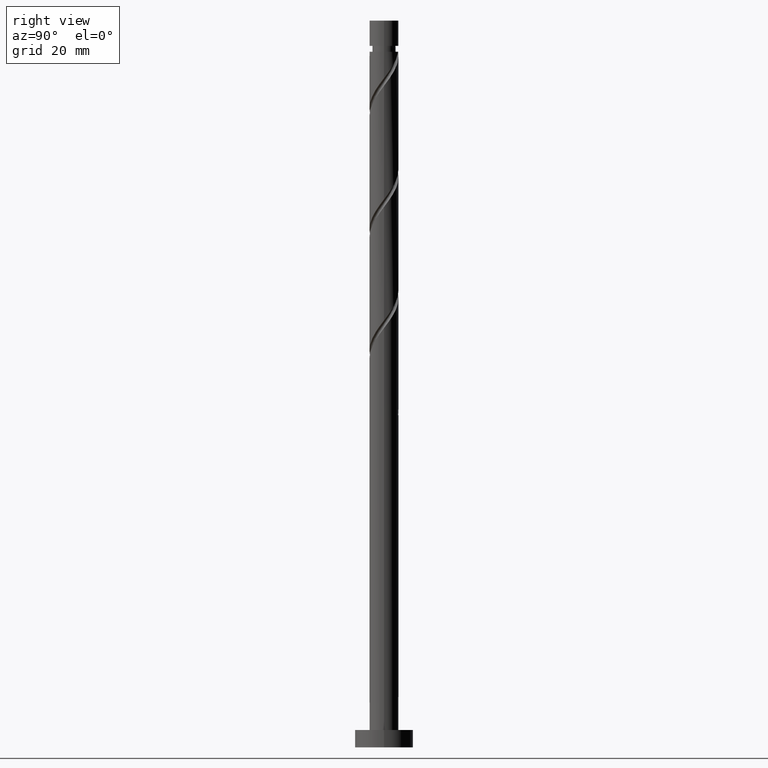
[diagram: clean part render]
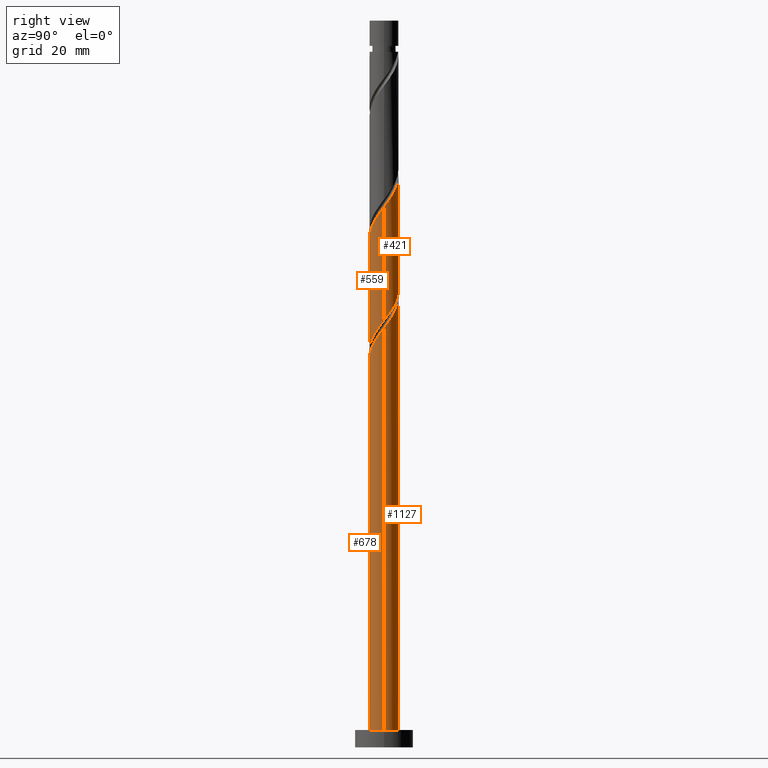
[diagram: same view with one multi-face feature highlighted, each face labeled with its STEP entity id]
A machine part, right view. The highlighted faces form ONE feature: a constant-radius fillet chain: 4 tangent blend faces with common blend radius 2.5 mm. The faces share edges in the B-rep.
Their STEP definitions:
[1] entity #1127 (Cylinder):
#16 = DIRECTION ( 'NONE',  ( -1.000000000000000000, 0.000000000000000000, 0.000000000000000000 ) ) ;
#21 = VERTEX_POINT ( 'NONE', #1138 ) ;
#31 = CARTESIAN_POINT ( 'NONE',  ( -1.842554741020977049, 1.689672165344846322, 59.23285542210386012 ) ) ;
#60 = CARTESIAN_POINT ( 'NONE',  ( 1.037592995212146540, 2.274511107092402007, 75.89952208877051021 ) ) ;
#64 =( BOUNDED_CURVE ( )  B_SPLINE_CURVE ( 2, ( #1148, #917, #289, #663, #1285, #179, #558, #204, #410, #551, #420, #1398, #1035 ),
 .UNSPECIFIED., .F., .T. ) 
 B_SPLINE_CURVE_WITH_KNOTS ( ( 3, 2, 2, 2, 2, 2, 3 ),
 ( 0.9295322023138551382, 0.9375000000000000000, 0.9499999999999999556, 0.9625000000000000222, 0.9749999999999999778, 0.9875000000000000444, 1.000000000000000000 ),
 .UNSPECIFIED. ) 
 CURVE ( )  GEOMETRIC_REPRESENTATION_ITEM ( )  RATIONAL_B_SPLINE_CURVE ( ( 0.9039174447099354026, 0.9019565955404647006, 0.9090909090909131685, 0.8978984914501292325, 0.9090909090909131685, 0.8978984914501292325, 0.9090909090909131685, 0.8978984914501292325, 0.9090909090909131685, 0.8978984914501292325, 0.9090909090909131685, 0.8978984914501292325, 0.9090909090909131685 ) ) 
 REPRESENTATION_ITEM ( '' )  );
#75 = ORIENTED_EDGE ( 'NONE', *, *, #259, .T. ) ;
#77 = CARTESIAN_POINT ( 'NONE',  ( 1.981504166768774056, 1.574936960780885853, 74.33702208877048179 ) ) ;
#100 = ORIENTED_EDGE ( 'NONE', *, *, #592, .F. ) ;
#104 = CARTESIAN_POINT ( 'NONE',  ( -2.500000000000000000, 0.000000000000000000, 125.0000000000000000 ) ) ;
#110 = CARTESIAN_POINT ( 'NONE',  ( -2.483822478550889556, 0.2839469933725886630, 82.14952208877051021 ) ) ;
#155 = CARTESIAN_POINT ( 'NONE',  ( -2.274511107092402451, 1.037592995212145874, 60.27452208877052442 ) ) ;
#179 = CARTESIAN_POINT ( 'NONE',  ( -1.981504166768770503, 1.574936960780884077, 60.79535542210386723 ) ) ;
#204 = CARTESIAN_POINT ( 'NONE',  ( -1.397840163920914813, 2.110172521261064915, 59.75368875543718161 ) ) ;
#259 = EDGE_CURVE ( 'NONE', #1341, #865, #1524, .T. ) ;
#283 = CARTESIAN_POINT ( 'NONE',  ( 2.450000000000003730, 0.4974937185533107042, 72.77452208877053863 ) ) ;
#289 = CARTESIAN_POINT ( 'NONE',  ( -2.449999999999999734, 0.4974937185533108153, 62.35785542210385302 ) ) ;
#291 = VECTOR ( 'NONE', #606, 1000.000000000000000 ) ;
#335 = VERTEX_POINT ( 'NONE', #1370 ) ;
#346 = EDGE_CURVE ( 'NONE', #21, #1275, #1065, .T. ) ;
#379 = CARTESIAN_POINT ( 'NONE',  ( 0.000000000000000000, 0.000000000000000000, 3.000000000000000000 ) ) ;
#381 = CARTESIAN_POINT ( 'NONE',  ( -2.500000000000003109, -2.968634351074724659E-15, 61.69305298063360254 ) ) ;
#384 = VERTEX_POINT ( 'NONE', #633 ) ;
#391 = CARTESIAN_POINT ( 'NONE',  ( 1.397840163920917256, 2.110172521261066247, 75.37868875543718161 ) ) ;
#398 = CARTESIAN_POINT ( 'NONE',  ( -1.230236279064656157, 2.176354451295370307, 79.02452208877052442 ) ) ;
#410 = CARTESIAN_POINT ( 'NONE',  ( -1.037592995212143432, 2.274511107092399342, 59.23285542210385302 ) ) ;
#412 = CIRCLE ( 'NONE', #1508, 2.500000000000000000 ) ;
#420 = CARTESIAN_POINT ( 'NONE',  ( -0.2839469933725877748, 2.483822478550885116, 58.19118875543718872 ) ) ;
#436 = LINE ( 'NONE', #924, #694 ) ;
#507 = CARTESIAN_POINT ( 'NONE',  ( -1.574936960780886075, 1.981504166768772945, 58.71202208877052442 ) ) ;
#509 =( BOUNDED_CURVE ( )  B_SPLINE_CURVE ( 2, ( #888, #1136, #283, #517, #795, #77, #1492, #391, #60, #565, #1000, #1483, #881, #1364, #398, #1371, #701, #1068, #1187, #1086, #110, #1414, #1201 ),
 .UNSPECIFIED., .F., .T. ) 
 B_SPLINE_CURVE_WITH_KNOTS ( ( 3, 2, 2, 2, 2, 2, 2, 2, 2, 2, 2, 3 ),
 ( 0.1795322023138553325, 0.1875000000000000000, 0.1999999999999999556, 0.2125000000000000222, 0.2249999999999999778, 0.2375000000000000444, 0.2500000000000000000, 0.2624999999999999556, 0.2750000000000000222, 0.2874999999999999778, 0.3000000000000000444, 0.3045322023138554157 ),
 .UNSPECIFIED. ) 
 CURVE ( )  GEOMETRIC_REPRESENTATION_ITEM ( )  RATIONAL_B_SPLINE_CURVE ( ( 0.9039174447099425080, 0.9019565955404720281, 0.9090909090909202739, 0.8978984914501365600, 0.9090909090909202739, 0.8978984914501365600, 0.9090909090909202739, 0.8978984914501365600, 0.9090909090909202739, 0.8978984914501365600, 0.9090909090909202739, 0.8978984914501365600, 0.9090909090909202739, 0.8978984914501365600, 0.9090909090909202739, 0.8978984914501365600, 0.9090909090909202739, 0.8978984914501365600, 0.9090909090909202739, 0.8978984914501365600, 0.9090909090909202739, 0.9050328050005845837, 0.9039174447099425080 ) ) 
 REPRESENTATION_ITEM ( '' )  );
#515 = EDGE_CURVE ( 'NONE', #1257, #874, #64, .T. ) ;
#517 = CARTESIAN_POINT ( 'NONE',  ( 2.371204735821965226, 0.8855355973484249077, 73.29535542210383881 ) ) ;
#551 = CARTESIAN_POINT ( 'NONE',  ( -0.6773458265033720505, 2.438849692923733770, 58.71202208877053152 ) ) ;
#558 = CARTESIAN_POINT ( 'NONE',  ( -1.689672165344842769, 1.842554741020974385, 60.27452208877053863 ) ) ;
#565 = CARTESIAN_POINT ( 'NONE',  ( 0.6773458265033741599, 2.438849692923737766, 76.42035542210385302 ) ) ;
#592 = EDGE_CURVE ( 'NONE', #1275, #335, #436, .T. ) ;
#599 = LINE ( 'NONE', #104, #291 ) ;
#606 = DIRECTION ( 'NONE',  ( -0.000000000000000000, -0.000000000000000000, -1.000000000000000000 ) ) ;
#607 = CARTESIAN_POINT ( 'NONE',  ( 0.4974937185533113704, 2.450000000000000178, 57.14952208877052442 ) ) ;
#633 = CARTESIAN_POINT ( 'NONE',  ( -2.500000000000003553, -2.968634351074724659E-15, 82.52638631396690982 ) ) ;
#638 = DIRECTION ( 'NONE',  ( 0.000000000000000000, 1.000000000000000000, -5.551115123125782702E-15 ) ) ;
#663 = CARTESIAN_POINT ( 'NONE',  ( -2.371204735821961229, 0.8855355973484247967, 61.83702208877052442 ) ) ;
#694 = VECTOR ( 'NONE', #1499, 1000.000000000000000 ) ;
#701 = CARTESIAN_POINT ( 'NONE',  ( -1.842554741020977049, 1.689672165344846322, 80.06618875543722424 ) ) ;
#727 = ORIENTED_EDGE ( 'NONE', *, *, #346, .F. ) ;
#737 = DIRECTION ( 'NONE',  ( -0.000000000000000000, -0.000000000000000000, -1.000000000000000000 ) ) ;
#739 = CARTESIAN_POINT ( 'NONE',  ( -2.483822478550889556, 0.2839469933725886630, 61.31618875543719582 ) ) ;
#754 = CARTESIAN_POINT ( 'NONE',  ( 0.000000000000000000, 0.000000000000000000, 57.14952208877053863 ) ) ;
#781 = EDGE_LOOP ( 'NONE', ( #1207, #75, #857, #100, #727, #1117, #1271, #968 ) ) ;
#795 = CARTESIAN_POINT ( 'NONE',  ( 2.176354451295370751, 1.230236279064655491, 73.81618875543721003 ) ) ;
#801 = CARTESIAN_POINT ( 'NONE',  ( 2.500000000000000000, 3.061616997868382648E-16, 125.0000000000000000 ) ) ;
#857 = ORIENTED_EDGE ( 'NONE', *, *, #1273, .T. ) ;
#865 = VERTEX_POINT ( 'NONE', #1344 ) ;
#874 = VERTEX_POINT ( 'NONE', #607 ) ;
#876 = CARTESIAN_POINT ( 'NONE',  ( -2.500000000000000000, -3.388441229004510459E-15, 63.02265786357415323 ) ) ;
#881 = CARTESIAN_POINT ( 'NONE',  ( -0.4974937185533104822, 2.450000000000003730, 77.98285542210388144 ) ) ;
#888 = CARTESIAN_POINT ( 'NONE',  ( 2.500000000000003553, 2.608799884277788504E-15, 72.10971964730025263 ) ) ;
#902 = AXIS2_PLACEMENT_3D ( 'NONE', #1574, #737, #16 ) ;
#917 = CARTESIAN_POINT ( 'NONE',  ( -2.500000000000000444, 0.2512594538148018031, 62.68835328816629726 ) ) ;
#919 = DIRECTION ( 'NONE',  ( -0.000000000000000000, -0.000000000000000000, -1.000000000000000000 ) ) ;
#924 = CARTESIAN_POINT ( 'NONE',  ( -2.500000000000000000, 0.000000000000000000, 125.0000000000000000 ) ) ;
#957 = EDGE_CURVE ( 'NONE', #1341, #384, #509, .T. ) ;
#968 = ORIENTED_EDGE ( 'NONE', *, *, #991, .F. ) ;
#991 = EDGE_CURVE ( 'NONE', #384, #1257, #599, .T. ) ;
#992 = CARTESIAN_POINT ( 'NONE',  ( -0.4974937185533103157, 2.450000000000003286, 57.14952208877051731 ) ) ;
#999 = CARTESIAN_POINT ( 'NONE',  ( -2.438849692923737766, 0.6773458265033737158, 60.79535542210384591 ) ) ;
#1000 = CARTESIAN_POINT ( 'NONE',  ( 0.2839469933725892736, 2.483822478550890001, 76.94118875543721003 ) ) ;
#1004 = DIRECTION ( 'NONE',  ( -1.540743955509787281E-30, -6.938893903907225222E-15, -1.000000000000000000 ) ) ;
#1005 = CARTESIAN_POINT ( 'NONE',  ( -1.230236279064656157, 2.176354451295370307, 58.19118875543719582 ) ) ;
#1035 = CARTESIAN_POINT ( 'NONE',  ( 0.4974937185533113704, 2.450000000000000178, 57.14952208877052442 ) ) ;
#1065 =( BOUNDED_CURVE ( )  B_SPLINE_CURVE ( 2, ( #992, #1219, #1005, #507, #31, #1338, #155, #999, #739, #1238, #381 ),
 .UNSPECIFIED., .F., .T. ) 
 B_SPLINE_CURVE_WITH_KNOTS ( ( 3, 2, 2, 2, 2, 3 ),
 ( 0.000000000000000000, 0.01249999999999995559, 0.02500000000000002220, 0.03749999999999997780, 0.05000000000000004441, 0.05453220231385547817 ),
 .UNSPECIFIED. ) 
 CURVE ( )  GEOMETRIC_REPRESENTATION_ITEM ( )  RATIONAL_B_SPLINE_CURVE ( ( 0.9090909090909202739, 0.8978984914501365600, 0.9090909090909202739, 0.8978984914501365600, 0.9090909090909202739, 0.8978984914501365600, 0.9090909090909202739, 0.8978984914501365600, 0.9090909090909202739, 0.9050328050005846947, 0.9039174447099427301 ) ) 
 REPRESENTATION_ITEM ( '' )  );
#1068 = CARTESIAN_POINT ( 'NONE',  ( -2.110172521261066692, 1.397840163920916812, 80.58702208877048179 ) ) ;
#1086 = CARTESIAN_POINT ( 'NONE',  ( -2.438849692923737766, 0.6773458265033737158, 81.62868875543719582 ) ) ;
#1093 = CARTESIAN_POINT ( 'NONE',  ( -2.500000000000003553, -2.968634351074724659E-15, 61.69305298063360254 ) ) ;
#1100 = DIRECTION ( 'NONE',  ( 1.000000000000000000, 0.000000000000000000, 0.000000000000000000 ) ) ;
#1106 = CIRCLE ( 'NONE', #1560, 2.500000000000000000 ) ;
#1111 = FACE_OUTER_BOUND ( 'NONE', #781, .T. ) ;
#1117 = ORIENTED_EDGE ( 'NONE', *, *, #1270, .T. ) ;
#1127 = ADVANCED_FACE ( 'NONE', ( #1111 ), #1489, .T. ) ;
#1136 = CARTESIAN_POINT ( 'NONE',  ( 2.500000000000002665, 0.2512594538148071877, 72.44402422270812281 ) ) ;
#1138 = CARTESIAN_POINT ( 'NONE',  ( -0.4974937185533103712, 2.450000000000003286, 57.14952208877052442 ) ) ;
#1148 = CARTESIAN_POINT ( 'NONE',  ( -2.500000000000000000, -3.388441229004510459E-15, 63.02265786357414612 ) ) ;
#1187 = CARTESIAN_POINT ( 'NONE',  ( -2.274511107092402451, 1.037592995212145874, 81.10785542210386723 ) ) ;
#1201 = CARTESIAN_POINT ( 'NONE',  ( -2.500000000000003553, -2.968634351074724659E-15, 82.52638631396690982 ) ) ;
#1207 = ORIENTED_EDGE ( 'NONE', *, *, #957, .F. ) ;
#1219 = CARTESIAN_POINT ( 'NONE',  ( -0.8855355973484252408, 2.371204735821965226, 57.67035542210383881 ) ) ;
#1238 = CARTESIAN_POINT ( 'NONE',  ( -2.500000000000003553, 0.1424343436160735998, 61.50354189142633032 ) ) ;
#1243 = DIRECTION ( 'NONE',  ( 0.000000000000000000, 0.000000000000000000, 1.000000000000000000 ) ) ;
#1257 = VERTEX_POINT ( 'NONE', #876 ) ;
#1270 = EDGE_CURVE ( 'NONE', #21, #874, #1106, .T. ) ;
#1271 = ORIENTED_EDGE ( 'NONE', *, *, #515, .F. ) ;
#1273 = EDGE_CURVE ( 'NONE', #865, #335, #412, .T. ) ;
#1275 = VERTEX_POINT ( 'NONE', #1093 ) ;
#1285 = CARTESIAN_POINT ( 'NONE',  ( -2.176354451295365866, 1.230236279064654381, 61.31618875543717451 ) ) ;
#1338 = CARTESIAN_POINT ( 'NONE',  ( -2.110172521261066692, 1.397840163920916812, 59.75368875543716740 ) ) ;
#1341 = VERTEX_POINT ( 'NONE', #1361 ) ;
#1344 = CARTESIAN_POINT ( 'NONE',  ( 2.500000000000000000, 3.061616997868382648E-16, 3.000000000000000000 ) ) ;
#1361 = CARTESIAN_POINT ( 'NONE',  ( 2.500000000000003553, 2.608799884277788110E-15, 72.10971964730025263 ) ) ;
#1364 = CARTESIAN_POINT ( 'NONE',  ( -0.8855355973484252408, 2.371204735821965226, 78.50368875543716740 ) ) ;
#1370 = CARTESIAN_POINT ( 'NONE',  ( -2.500000000000000000, 0.000000000000000000, 3.000000000000000000 ) ) ;
#1371 = CARTESIAN_POINT ( 'NONE',  ( -1.574936960780886075, 1.981504166768772945, 79.54535542210386723 ) ) ;
#1398 = CARTESIAN_POINT ( 'NONE',  ( 0.1094518397581969033, 2.528795264178037794, 57.67035542210384591 ) ) ;
#1414 = CARTESIAN_POINT ( 'NONE',  ( -2.500000000000004441, 0.1424343436160755705, 82.33687522475963760 ) ) ;
#1483 = CARTESIAN_POINT ( 'NONE',  ( -0.1094518397581958763, 2.528795264178040902, 77.46202208877051021 ) ) ;
#1489 = CYLINDRICAL_SURFACE ( 'NONE', #902, 2.500000000000000000 ) ;
#1492 = CARTESIAN_POINT ( 'NONE',  ( 1.689672165344846544, 1.842554741020976827, 74.85785542210385302 ) ) ;
#1499 = DIRECTION ( 'NONE',  ( -0.000000000000000000, -0.000000000000000000, -1.000000000000000000 ) ) ;
#1508 = AXIS2_PLACEMENT_3D ( 'NONE', #379, #1243, #1100 ) ;
#1524 = LINE ( 'NONE', #801, #1534 ) ;
#1534 = VECTOR ( 'NONE', #919, 1000.000000000000000 ) ;
#1560 = AXIS2_PLACEMENT_3D ( 'NONE', #754, #1004, #638 ) ;
#1574 = CARTESIAN_POINT ( 'NONE',  ( 0.000000000000000000, 0.000000000000000000, 125.0000000000000000 ) ) ;
[2] entity #678 (Cylinder):
#44 = EDGE_LOOP ( 'NONE', ( #345, #961, #1324, #784 ) ) ;
#89 =( BOUNDED_CURVE ( )  B_SPLINE_CURVE ( 2, ( #1069, #1429, #814, #578, #455, #1437, #343, #693, #356, #1423, #220, #1309, #98, #835, #715, #585, #964, #830, #1196, #1076, #1445, #473, #1559 ),
 .UNSPECIFIED., .F., .T. ) 
 B_SPLINE_CURVE_WITH_KNOTS ( ( 3, 2, 2, 2, 2, 2, 2, 2, 2, 2, 2, 3 ),
 ( 0.05453220231385547817, 0.06250000000000000000, 0.07499999999999995559, 0.08750000000000002220, 0.09999999999999997780, 0.1125000000000000444, 0.1250000000000000000, 0.1374999999999999556, 0.1500000000000000222, 0.1624999999999999778, 0.1750000000000000444, 0.1795322023138553325 ),
 .UNSPECIFIED. ) 
 CURVE ( )  GEOMETRIC_REPRESENTATION_ITEM ( )  RATIONAL_B_SPLINE_CURVE ( ( 0.9039174447099427301, 0.9019565955404722501, 0.9090909090909202739, 0.8978984914501365600, 0.9090909090909202739, 0.8978984914501365600, 0.9090909090909202739, 0.8978984914501365600, 0.9090909090909202739, 0.8978984914501365600, 0.9090909090909202739, 0.8978984914501365600, 0.9090909090909202739, 0.8978984914501365600, 0.9090909090909202739, 0.8978984914501365600, 0.9090909090909202739, 0.8978984914501365600, 0.9090909090909202739, 0.8978984914501365600, 0.9090909090909202739, 0.9050328050005845837, 0.9039174447099425080 ) ) 
 REPRESENTATION_ITEM ( '' )  );
#90 = DIRECTION ( 'NONE',  ( -0.000000000000000000, -0.000000000000000000, -1.000000000000000000 ) ) ;
#98 = CARTESIAN_POINT ( 'NONE',  ( 0.4974937185533108153, -2.450000000000003730, 67.56618875543719582 ) ) ;
#194 = CARTESIAN_POINT ( 'NONE',  ( 0.000000000000000000, 0.000000000000000000, 3.000000000000000000 ) ) ;
#211 = FACE_OUTER_BOUND ( 'NONE', #44, .T. ) ;
#220 = CARTESIAN_POINT ( 'NONE',  ( -0.2839469933725888851, -2.483822478550889556, 66.52452208877052442 ) ) ;
#259 = EDGE_CURVE ( 'NONE', #1341, #865, #1524, .T. ) ;
#335 = VERTEX_POINT ( 'NONE', #1370 ) ;
#343 = CARTESIAN_POINT ( 'NONE',  ( -1.689672165344846322, -1.842554741020976827, 64.44118875543719582 ) ) ;
#345 = ORIENTED_EDGE ( 'NONE', *, *, #259, .F. ) ;
#356 = CARTESIAN_POINT ( 'NONE',  ( -1.037592995212146318, -2.274511107092402007, 65.48285542210386723 ) ) ;
#436 = LINE ( 'NONE', #924, #694 ) ;
#455 = CARTESIAN_POINT ( 'NONE',  ( -2.176354451295370751, -1.230236279064656157, 63.39952208877054574 ) ) ;
#473 = CARTESIAN_POINT ( 'NONE',  ( 2.500000000000004441, -0.1424343436160785403, 71.92020855809299462 ) ) ;
#524 = CIRCLE ( 'NONE', #596, 2.500000000000000000 ) ;
#578 = CARTESIAN_POINT ( 'NONE',  ( -2.371204735821965226, -0.8855355973484251297, 62.87868875543716030 ) ) ;
#585 = CARTESIAN_POINT ( 'NONE',  ( 1.574936960780885853, -1.981504166768773612, 69.12868875543719582 ) ) ;
#592 = EDGE_CURVE ( 'NONE', #1275, #335, #436, .T. ) ;
#596 = AXIS2_PLACEMENT_3D ( 'NONE', #194, #1289, #1161 ) ;
#678 = ADVANCED_FACE ( 'NONE', ( #211 ), #1181, .T. ) ;
#693 = CARTESIAN_POINT ( 'NONE',  ( -1.397840163920916812, -2.110172521261066692, 64.96202208877051021 ) ) ;
#694 = VECTOR ( 'NONE', #1499, 1000.000000000000000 ) ;
#715 = CARTESIAN_POINT ( 'NONE',  ( 1.230236279064655713, -2.176354451295370751, 68.60785542210386723 ) ) ;
#772 = EDGE_CURVE ( 'NONE', #1275, #1341, #89, .T. ) ;
#784 = ORIENTED_EDGE ( 'NONE', *, *, #1522, .T. ) ;
#801 = CARTESIAN_POINT ( 'NONE',  ( 2.500000000000000000, 3.061616997868382648E-16, 125.0000000000000000 ) ) ;
#814 = CARTESIAN_POINT ( 'NONE',  ( -2.450000000000003730, -0.4974937185533110373, 62.35785542210387433 ) ) ;
#830 = CARTESIAN_POINT ( 'NONE',  ( 2.110172521261066692, -1.397840163920917256, 70.17035542210385302 ) ) ;
#835 = CARTESIAN_POINT ( 'NONE',  ( 0.8855355973484250187, -2.371204735821965226, 68.08702208877049600 ) ) ;
#865 = VERTEX_POINT ( 'NONE', #1344 ) ;
#919 = DIRECTION ( 'NONE',  ( -0.000000000000000000, -0.000000000000000000, -1.000000000000000000 ) ) ;
#924 = CARTESIAN_POINT ( 'NONE',  ( -2.500000000000000000, 0.000000000000000000, 125.0000000000000000 ) ) ;
#961 = ORIENTED_EDGE ( 'NONE', *, *, #772, .F. ) ;
#964 = CARTESIAN_POINT ( 'NONE',  ( 1.842554741020976827, -1.689672165344846322, 69.64952208877055284 ) ) ;
#1061 = DIRECTION ( 'NONE',  ( -1.000000000000000000, 0.000000000000000000, 0.000000000000000000 ) ) ;
#1069 = CARTESIAN_POINT ( 'NONE',  ( -2.500000000000003109, -2.968634351074724659E-15, 61.69305298063360254 ) ) ;
#1076 = CARTESIAN_POINT ( 'NONE',  ( 2.438849692923737766, -0.6773458265033740489, 71.21202208877051021 ) ) ;
#1087 = CARTESIAN_POINT ( 'NONE',  ( 0.000000000000000000, 0.000000000000000000, 125.0000000000000000 ) ) ;
#1093 = CARTESIAN_POINT ( 'NONE',  ( -2.500000000000003553, -2.968634351074724659E-15, 61.69305298063360254 ) ) ;
#1161 = DIRECTION ( 'NONE',  ( 1.000000000000000000, 0.000000000000000000, 0.000000000000000000 ) ) ;
#1181 = CYLINDRICAL_SURFACE ( 'NONE', #1356, 2.500000000000000000 ) ;
#1196 = CARTESIAN_POINT ( 'NONE',  ( 2.274511107092402007, -1.037592995212146318, 70.69118875543719582 ) ) ;
#1275 = VERTEX_POINT ( 'NONE', #1093 ) ;
#1289 = DIRECTION ( 'NONE',  ( 0.000000000000000000, 0.000000000000000000, 1.000000000000000000 ) ) ;
#1309 = CARTESIAN_POINT ( 'NONE',  ( 0.1094518397581961539, -2.528795264178040902, 67.04535542210383881 ) ) ;
#1324 = ORIENTED_EDGE ( 'NONE', *, *, #592, .T. ) ;
#1341 = VERTEX_POINT ( 'NONE', #1361 ) ;
#1344 = CARTESIAN_POINT ( 'NONE',  ( 2.500000000000000000, 3.061616997868382648E-16, 3.000000000000000000 ) ) ;
#1356 = AXIS2_PLACEMENT_3D ( 'NONE', #1087, #90, #1061 ) ;
#1361 = CARTESIAN_POINT ( 'NONE',  ( 2.500000000000003553, 2.608799884277788110E-15, 72.10971964730025263 ) ) ;
#1370 = CARTESIAN_POINT ( 'NONE',  ( -2.500000000000000000, 0.000000000000000000, 3.000000000000000000 ) ) ;
#1423 = CARTESIAN_POINT ( 'NONE',  ( -0.6773458265033740489, -2.438849692923737766, 66.00368875543716740 ) ) ;
#1429 = CARTESIAN_POINT ( 'NONE',  ( -2.500000000000001332, -0.2512594538148121281, 62.02735755604144430 ) ) ;
#1437 = CARTESIAN_POINT ( 'NONE',  ( -1.981504166768772945, -1.574936960780886075, 63.92035542210383170 ) ) ;
#1445 = CARTESIAN_POINT ( 'NONE',  ( 2.483822478550889556, -0.2839469933725889961, 71.73285542210385302 ) ) ;
#1499 = DIRECTION ( 'NONE',  ( -0.000000000000000000, -0.000000000000000000, -1.000000000000000000 ) ) ;
#1522 = EDGE_CURVE ( 'NONE', #335, #865, #524, .T. ) ;
#1524 = LINE ( 'NONE', #801, #1534 ) ;
#1534 = VECTOR ( 'NONE', #919, 1000.000000000000000 ) ;
#1559 = CARTESIAN_POINT ( 'NONE',  ( 2.500000000000003553, 2.608799884277788504E-15, 72.10971964730025263 ) ) ;
[3] entity #559 (Cylinder):
#8 = AXIS2_PLACEMENT_3D ( 'NONE', #1043, #78, #1529 ) ;
#37 = CARTESIAN_POINT ( 'NONE',  ( -2.176354451295370751, -1.230236279064656157, 84.23285542210388144 ) ) ;
#41 = EDGE_CURVE ( 'NONE', #118, #1380, #540, .T. ) ;
#45 = CARTESIAN_POINT ( 'NONE',  ( 2.274511107092402007, -1.037592995212146318, 91.52452208877053863 ) ) ;
#51 = CARTESIAN_POINT ( 'NONE',  ( 2.483822478550889556, -0.2839469933725889961, 92.56618875543719582 ) ) ;
#56 = ORIENTED_EDGE ( 'NONE', *, *, #991, .T. ) ;
#67 = CARTESIAN_POINT ( 'NONE',  ( 0.1094518397581961539, -2.528795264178040902, 87.87868875543716740 ) ) ;
#70 = FACE_OUTER_BOUND ( 'NONE', #1062, .T. ) ;
#78 = DIRECTION ( 'NONE',  ( -0.000000000000000000, -0.000000000000000000, -1.000000000000000000 ) ) ;
#104 = CARTESIAN_POINT ( 'NONE',  ( -2.500000000000000000, 0.000000000000000000, 125.0000000000000000 ) ) ;
#118 = VERTEX_POINT ( 'NONE', #1287 ) ;
#120 = CARTESIAN_POINT ( 'NONE',  ( 2.371204735821960785, -0.8855355973484250187, 72.25368875543718161 ) ) ;
#160 = CARTESIAN_POINT ( 'NONE',  ( -2.500000000000000000, -3.388441229004510459E-15, 63.02265786357414612 ) ) ;
#177 = CARTESIAN_POINT ( 'NONE',  ( 1.574936960780885853, -1.981504166768773612, 89.96202208877051021 ) ) ;
#210 = CARTESIAN_POINT ( 'NONE',  ( 0.6773458265033719394, -2.438849692923733326, 69.12868875543721003 ) ) ;
#219 = CARTESIAN_POINT ( 'NONE',  ( 2.176354451295365866, -1.230236279064654603, 71.73285542210385302 ) ) ;
#238 = CARTESIAN_POINT ( 'NONE',  ( 2.500000000000000000, 2.998620556641159737E-15, 73.43932453024082463 ) ) ;
#247 = CARTESIAN_POINT ( 'NONE',  ( -2.438849692923733770, -0.6773458265033720505, 63.92035542210387433 ) ) ;
#263 = CARTESIAN_POINT ( 'NONE',  ( 2.500000000000000000, 2.998620556641159737E-15, 73.43932453024082463 ) ) ;
#287 = CARTESIAN_POINT ( 'NONE',  ( 2.110172521261066692, -1.397840163920917256, 91.00368875543715319 ) ) ;
#291 = VECTOR ( 'NONE', #606, 1000.000000000000000 ) ;
#294 = ORIENTED_EDGE ( 'NONE', *, *, #41, .F. ) ;
#296 = CARTESIAN_POINT ( 'NONE',  ( 0.8855355973484250187, -2.371204735821965226, 88.92035542210381038 ) ) ;
#333 = CARTESIAN_POINT ( 'NONE',  ( -1.574936960780884077, -1.981504166768770503, 66.00368875543721003 ) ) ;
#384 = VERTEX_POINT ( 'NONE', #633 ) ;
#386 = CARTESIAN_POINT ( 'NONE',  ( -2.274511107092399342, -1.037592995212143210, 64.44118875543719582 ) ) ;
#402 = CARTESIAN_POINT ( 'NONE',  ( -0.6773458265033740489, -2.438849692923737766, 86.83702208877051021 ) ) ;
#453 = CARTESIAN_POINT ( 'NONE',  ( 1.981504166768770503, -1.574936960780884077, 71.21202208877055284 ) ) ;
#464 =( BOUNDED_CURVE ( )  B_SPLINE_CURVE ( 2, ( #238, #577, #1209, #120, #219, #453, #1536, #931, #1301, #210, #692, #1180, #1059, #938, #1422, #333, #819, #513, #386, #247, #630, #1464, #160 ),
 .UNSPECIFIED., .F., .T. ) 
 B_SPLINE_CURVE_WITH_KNOTS ( ( 3, 2, 2, 2, 2, 2, 2, 2, 2, 2, 2, 3 ),
 ( 0.8045322023138551382, 0.8125000000000000000, 0.8249999999999999556, 0.8375000000000000222, 0.8499999999999999778, 0.8625000000000000444, 0.8750000000000000000, 0.8874999999999999556, 0.9000000000000000222, 0.9124999999999999778, 0.9250000000000000444, 0.9295322023138551382 ),
 .UNSPECIFIED. ) 
 CURVE ( )  GEOMETRIC_REPRESENTATION_ITEM ( )  RATIONAL_B_SPLINE_CURVE ( ( 0.9039174447099354026, 0.9019565955404647006, 0.9090909090909131685, 0.8978984914501292325, 0.9090909090909131685, 0.8978984914501292325, 0.9090909090909131685, 0.8978984914501292325, 0.9090909090909131685, 0.8978984914501292325, 0.9090909090909131685, 0.8978984914501292325, 0.9090909090909131685, 0.8978984914501292325, 0.9090909090909131685, 0.8978984914501292325, 0.9090909090909131685, 0.8978984914501292325, 0.9090909090909131685, 0.8978984914501292325, 0.9090909090909131685, 0.9050328050005775893, 0.9039174447099354026 ) ) 
 REPRESENTATION_ITEM ( '' )  );
#513 = CARTESIAN_POINT ( 'NONE',  ( -2.110172521261064915, -1.397840163920914369, 64.96202208877053863 ) ) ;
#540 = LINE ( 'NONE', #1030, #1404 ) ;
#548 = CARTESIAN_POINT ( 'NONE',  ( -2.500000000000003553, -2.968634351074724659E-15, 82.52638631396690982 ) ) ;
#559 = ADVANCED_FACE ( 'NONE', ( #70 ), #1514, .T. ) ;
#575 = ORIENTED_EDGE ( 'NONE', *, *, #1077, .F. ) ;
#577 = CARTESIAN_POINT ( 'NONE',  ( 2.500000000000000444, -0.2512594538148021917, 73.10501995483295445 ) ) ;
#599 = LINE ( 'NONE', #104, #291 ) ;
#606 = DIRECTION ( 'NONE',  ( -0.000000000000000000, -0.000000000000000000, -1.000000000000000000 ) ) ;
#630 = CARTESIAN_POINT ( 'NONE',  ( -2.483822478550885560, -0.2839469933725876638, 63.39952208877053152 ) ) ;
#633 = CARTESIAN_POINT ( 'NONE',  ( -2.500000000000003553, -2.968634351074724659E-15, 82.52638631396690982 ) ) ;
#661 = CARTESIAN_POINT ( 'NONE',  ( 2.500000000000004441, -0.1424343436160758758, 92.75354189142630901 ) ) ;
#692 = CARTESIAN_POINT ( 'NONE',  ( 0.2839469933725874418, -2.483822478550885560, 68.60785542210388144 ) ) ;
#752 = ORIENTED_EDGE ( 'NONE', *, *, #1552, .F. ) ;
#768 = CARTESIAN_POINT ( 'NONE',  ( -2.500000000000001776, -0.2512594538148100742, 82.86069088937472316 ) ) ;
#777 = CARTESIAN_POINT ( 'NONE',  ( -0.2839469933725888851, -2.483822478550889556, 87.35785542210386723 ) ) ;
#819 = CARTESIAN_POINT ( 'NONE',  ( -1.842554741020974385, -1.689672165344842103, 65.48285542210385302 ) ) ;
#876 = CARTESIAN_POINT ( 'NONE',  ( -2.500000000000000000, -3.388441229004510459E-15, 63.02265786357415323 ) ) ;
#892 = CARTESIAN_POINT ( 'NONE',  ( 0.4974937185533108153, -2.450000000000003730, 88.39952208877052442 ) ) ;
#899 = CARTESIAN_POINT ( 'NONE',  ( 2.500000000000003553, 2.608799884277788504E-15, 92.94305298063359544 ) ) ;
#907 = CARTESIAN_POINT ( 'NONE',  ( 2.438849692923737766, -0.6773458265033740489, 92.04535542210382459 ) ) ;
#914 = CARTESIAN_POINT ( 'NONE',  ( -1.689672165344846322, -1.842554741020976827, 85.27452208877052442 ) ) ;
#931 = CARTESIAN_POINT ( 'NONE',  ( 1.397840163920914369, -2.110172521261064915, 70.17035542210388144 ) ) ;
#938 = CARTESIAN_POINT ( 'NONE',  ( -0.8855355973484247967, -2.371204735821960785, 67.04535542210386723 ) ) ;
#991 = EDGE_CURVE ( 'NONE', #384, #1257, #599, .T. ) ;
#1011 = CARTESIAN_POINT ( 'NONE',  ( -1.397840163920916812, -2.110172521261066692, 85.79535542210382459 ) ) ;
#1013 =( BOUNDED_CURVE ( )  B_SPLINE_CURVE ( 2, ( #548, #768, #1526, #1133, #37, #1274, #914, #1011, #1497, #402, #777, #67, #892, #296, #1403, #177, #1375, #287, #45, #907, #51, #661, #899 ),
 .UNSPECIFIED., .F., .T. ) 
 B_SPLINE_CURVE_WITH_KNOTS ( ( 3, 2, 2, 2, 2, 2, 2, 2, 2, 2, 2, 3 ),
 ( 0.3045322023138554157, 0.3125000000000000000, 0.3249999999999999556, 0.3375000000000000222, 0.3499999999999999778, 0.3625000000000000444, 0.3750000000000000000, 0.3874999999999999556, 0.4000000000000000222, 0.4124999999999999778, 0.4250000000000000444, 0.4295322023138554157 ),
 .UNSPECIFIED. ) 
 CURVE ( )  GEOMETRIC_REPRESENTATION_ITEM ( )  RATIONAL_B_SPLINE_CURVE ( ( 0.9039174447099425080, 0.9019565955404722501, 0.9090909090909202739, 0.8978984914501365600, 0.9090909090909202739, 0.8978984914501365600, 0.9090909090909202739, 0.8978984914501365600, 0.9090909090909202739, 0.8978984914501365600, 0.9090909090909202739, 0.8978984914501365600, 0.9090909090909202739, 0.8978984914501365600, 0.9090909090909202739, 0.8978984914501365600, 0.9090909090909202739, 0.8978984914501365600, 0.9090909090909202739, 0.8978984914501365600, 0.9090909090909202739, 0.9050328050005845837, 0.9039174447099425080 ) ) 
 REPRESENTATION_ITEM ( '' )  );
#1030 = CARTESIAN_POINT ( 'NONE',  ( 2.500000000000000000, 3.061616997868382648E-16, 125.0000000000000000 ) ) ;
#1043 = CARTESIAN_POINT ( 'NONE',  ( 0.000000000000000000, 0.000000000000000000, 125.0000000000000000 ) ) ;
#1059 = CARTESIAN_POINT ( 'NONE',  ( -0.4974937185533110373, -2.449999999999999734, 67.56618875543718161 ) ) ;
#1062 = EDGE_LOOP ( 'NONE', ( #294, #752, #56, #575 ) ) ;
#1077 = EDGE_CURVE ( 'NONE', #1380, #1257, #464, .T. ) ;
#1133 = CARTESIAN_POINT ( 'NONE',  ( -2.371204735821965226, -0.8855355973484251297, 83.71202208877052442 ) ) ;
#1180 = CARTESIAN_POINT ( 'NONE',  ( -0.1094518397581972224, -2.528795264178037794, 68.08702208877053863 ) ) ;
#1209 = CARTESIAN_POINT ( 'NONE',  ( 2.449999999999999734, -0.4974937185533112038, 72.77452208877051021 ) ) ;
#1257 = VERTEX_POINT ( 'NONE', #876 ) ;
#1274 = CARTESIAN_POINT ( 'NONE',  ( -1.981504166768772945, -1.574936960780886075, 84.75368875543715319 ) ) ;
#1287 = CARTESIAN_POINT ( 'NONE',  ( 2.500000000000003553, 2.608799884277788110E-15, 92.94305298063359544 ) ) ;
#1301 = CARTESIAN_POINT ( 'NONE',  ( 1.037592995212143210, -2.274511107092399342, 69.64952208877051021 ) ) ;
#1375 = CARTESIAN_POINT ( 'NONE',  ( 1.842554741020976827, -1.689672165344846322, 90.48285542210385302 ) ) ;
#1380 = VERTEX_POINT ( 'NONE', #263 ) ;
#1403 = CARTESIAN_POINT ( 'NONE',  ( 1.230236279064655713, -2.176354451295370751, 89.44118875543721003 ) ) ;
#1404 = VECTOR ( 'NONE', #1516, 1000.000000000000000 ) ;
#1422 = CARTESIAN_POINT ( 'NONE',  ( -1.230236279064654381, -2.176354451295365866, 66.52452208877052442 ) ) ;
#1464 = CARTESIAN_POINT ( 'NONE',  ( -2.500000000000000000, -0.1424343436160834531, 63.21216895278143966 ) ) ;
#1497 = CARTESIAN_POINT ( 'NONE',  ( -1.037592995212146318, -2.274511107092402007, 86.31618875543721003 ) ) ;
#1514 = CYLINDRICAL_SURFACE ( 'NONE', #8, 2.500000000000000000 ) ;
#1516 = DIRECTION ( 'NONE',  ( -0.000000000000000000, -0.000000000000000000, -1.000000000000000000 ) ) ;
#1526 = CARTESIAN_POINT ( 'NONE',  ( -2.450000000000003730, -0.4974937185533110373, 83.19118875543716740 ) ) ;
#1529 = DIRECTION ( 'NONE',  ( -1.000000000000000000, 0.000000000000000000, 0.000000000000000000 ) ) ;
#1536 = CARTESIAN_POINT ( 'NONE',  ( 1.689672165344842103, -1.842554741020974385, 70.69118875543722424 ) ) ;
#1552 = EDGE_CURVE ( 'NONE', #384, #118, #1013, .T. ) ;
[4] entity #421 (Cylinder):
#39 = CYLINDRICAL_SURFACE ( 'NONE', #190, 2.500000000000000000 ) ;
#41 = EDGE_CURVE ( 'NONE', #118, #1380, #540, .T. ) ;
#47 = CARTESIAN_POINT ( 'NONE',  ( 0.2839469933725892736, 2.483822478550890001, 97.77452208877049600 ) ) ;
#87 = CARTESIAN_POINT ( 'NONE',  ( 1.230236279064654825, 2.176354451295365422, 76.94118875543723846 ) ) ;
#93 = EDGE_CURVE ( 'NONE', #467, #1178, #1487, .T. ) ;
#97 = CARTESIAN_POINT ( 'NONE',  ( -1.689672165344842769, 1.842554741020974385, 81.10785542210383881 ) ) ;
#105 = CARTESIAN_POINT ( 'NONE',  ( -2.500000000000003109, -1.709213717285447328E-15, 103.3597196473002668 ) ) ;
#118 = VERTEX_POINT ( 'NONE', #1287 ) ;
#125 = ORIENTED_EDGE ( 'NONE', *, *, #610, .F. ) ;
#173 = CARTESIAN_POINT ( 'NONE',  ( 1.689672165344846544, 1.842554741020976827, 95.69118875543721003 ) ) ;
#190 = AXIS2_PLACEMENT_3D ( 'NONE', #397, #274, #1246 ) ;
#226 = CARTESIAN_POINT ( 'NONE',  ( 0.4974937185533113704, 2.449999999999999734, 77.98285542210385302 ) ) ;
#263 = CARTESIAN_POINT ( 'NONE',  ( 2.500000000000000000, 2.998620556641159737E-15, 73.43932453024082463 ) ) ;
#265 = VECTOR ( 'NONE', #1249, 1000.000000000000000 ) ;
#274 = DIRECTION ( 'NONE',  ( -0.000000000000000000, -0.000000000000000000, -1.000000000000000000 ) ) ;
#298 = CARTESIAN_POINT ( 'NONE',  ( -1.574936960780886075, 1.981504166768772945, 100.3786887554371674 ) ) ;
#342 = CARTESIAN_POINT ( 'NONE',  ( 2.483822478550885560, 0.2839469933725872197, 73.81618875543722424 ) ) ;
#355 = CARTESIAN_POINT ( 'NONE',  ( -1.037592995212143432, 2.274511107092399342, 80.06618875543719582 ) ) ;
#397 = CARTESIAN_POINT ( 'NONE',  ( 0.000000000000000000, 0.000000000000000000, 125.0000000000000000 ) ) ;
#421 = ADVANCED_FACE ( 'NONE', ( #861 ), #39, .T. ) ;
#445 = CARTESIAN_POINT ( 'NONE',  ( -0.6773458265033720505, 2.438849692923733770, 79.54535542210386723 ) ) ;
#459 = CARTESIAN_POINT ( 'NONE',  ( 0.1094518397581969033, 2.528795264178037794, 78.50368875543719582 ) ) ;
#460 = CARTESIAN_POINT ( 'NONE',  ( -2.483822478550889556, 0.2839469933725886630, 102.9828554221038956 ) ) ;
#467 = VERTEX_POINT ( 'NONE', #668 ) ;
#472 = CARTESIAN_POINT ( 'NONE',  ( 1.842554741020974607, 1.689672165344842103, 75.89952208877053863 ) ) ;
#481 = CARTESIAN_POINT ( 'NONE',  ( -2.176354451295365866, 1.230236279064654381, 82.14952208877053863 ) ) ;
#538 = CARTESIAN_POINT ( 'NONE',  ( -0.1094518397581958763, 2.528795264178040902, 98.29535542210381038 ) ) ;
#540 = LINE ( 'NONE', #1030, #1404 ) ;
#566 =( BOUNDED_CURVE ( )  B_SPLINE_CURVE ( 2, ( #1408, #806, #909, #686, #1377, #773, #173, #1020, #655, #1142, #47, #538, #1506, #903, #1386, #298, #567, #600, #1049, #702, #460, #1302, #105 ),
 .UNSPECIFIED., .F., .T. ) 
 B_SPLINE_CURVE_WITH_KNOTS ( ( 3, 2, 2, 2, 2, 2, 2, 2, 2, 2, 2, 3 ),
 ( 0.4295322023138554157, 0.4375000000000000000, 0.4499999999999999556, 0.4625000000000000222, 0.4749999999999999778, 0.4875000000000000444, 0.5000000000000000000, 0.5124999999999999556, 0.5250000000000000222, 0.5374999999999999778, 0.5500000000000000444, 0.5545322023138553602 ),
 .UNSPECIFIED. ) 
 CURVE ( )  GEOMETRIC_REPRESENTATION_ITEM ( )  RATIONAL_B_SPLINE_CURVE ( ( 0.9039174447099425080, 0.9019565955404722501, 0.9090909090909202739, 0.8978984914501365600, 0.9090909090909202739, 0.8978984914501365600, 0.9090909090909202739, 0.8978984914501365600, 0.9090909090909202739, 0.8978984914501365600, 0.9090909090909202739, 0.8978984914501365600, 0.9090909090909202739, 0.8978984914501365600, 0.9090909090909202739, 0.8978984914501365600, 0.9090909090909202739, 0.8978984914501365600, 0.9090909090909202739, 0.8978984914501365600, 0.9090909090909202739, 0.9050328050005845837, 0.9039174447099425080 ) ) 
 REPRESENTATION_ITEM ( '' )  );
#567 = CARTESIAN_POINT ( 'NONE',  ( -1.842554741020977049, 1.689672165344846322, 100.8995220887705386 ) ) ;
#584 = CARTESIAN_POINT ( 'NONE',  ( -1.397840163920914813, 2.110172521261064915, 80.58702208877052442 ) ) ;
#600 = CARTESIAN_POINT ( 'NONE',  ( -2.110172521261066692, 1.397840163920916812, 101.4203554221038104 ) ) ;
#610 = EDGE_CURVE ( 'NONE', #118, #467, #566, .T. ) ;
#655 = CARTESIAN_POINT ( 'NONE',  ( 1.037592995212146540, 2.274511107092402007, 96.73285542210385302 ) ) ;
#659 = ORIENTED_EDGE ( 'NONE', *, *, #93, .F. ) ;
#668 = CARTESIAN_POINT ( 'NONE',  ( -2.500000000000003109, -1.709213717285447328E-15, 103.3597196473002668 ) ) ;
#686 = CARTESIAN_POINT ( 'NONE',  ( 2.371204735821965226, 0.8855355973484249077, 94.12868875543718161 ) ) ;
#702 = CARTESIAN_POINT ( 'NONE',  ( -2.438849692923737766, 0.6773458265033737158, 102.4620220887705102 ) ) ;
#708 = CARTESIAN_POINT ( 'NONE',  ( 2.500000000000000000, 2.998620556641159737E-15, 73.43932453024082463 ) ) ;
#714 = CARTESIAN_POINT ( 'NONE',  ( -1.981504166768770503, 1.574936960780884077, 81.62868875543721003 ) ) ;
#734 =( BOUNDED_CURVE ( )  B_SPLINE_CURVE ( 2, ( #843, #1075, #1566, #963, #481, #714, #97, #584, #355, #445, #1551, #459, #226, #1428, #87, #1558, #472, #1307, #1545, #829, #342, #947, #708 ),
 .UNSPECIFIED., .F., .T. ) 
 B_SPLINE_CURVE_WITH_KNOTS ( ( 3, 2, 2, 2, 2, 2, 2, 2, 2, 2, 2, 3 ),
 ( 0.6795322023138552492, 0.6875000000000000000, 0.6999999999999999556, 0.7125000000000000222, 0.7249999999999999778, 0.7375000000000000444, 0.7500000000000000000, 0.7624999999999999556, 0.7750000000000000222, 0.7874999999999999778, 0.8000000000000000444, 0.8045322023138551382 ),
 .UNSPECIFIED. ) 
 CURVE ( )  GEOMETRIC_REPRESENTATION_ITEM ( )  RATIONAL_B_SPLINE_CURVE ( ( 0.9039174447099354026, 0.9019565955404647006, 0.9090909090909131685, 0.8978984914501292325, 0.9090909090909131685, 0.8978984914501292325, 0.9090909090909131685, 0.8978984914501292325, 0.9090909090909131685, 0.8978984914501292325, 0.9090909090909131685, 0.8978984914501292325, 0.9090909090909131685, 0.8978984914501292325, 0.9090909090909131685, 0.8978984914501292325, 0.9090909090909131685, 0.8978984914501292325, 0.9090909090909131685, 0.8978984914501292325, 0.9090909090909131685, 0.9050328050005775893, 0.9039174447099354026 ) ) 
 REPRESENTATION_ITEM ( '' )  );
#773 = CARTESIAN_POINT ( 'NONE',  ( 1.981504166768774056, 1.574936960780885853, 95.17035542210382459 ) ) ;
#806 = CARTESIAN_POINT ( 'NONE',  ( 2.500000000000001776, 0.2512594538148097412, 93.27735755604140877 ) ) ;
#829 = CARTESIAN_POINT ( 'NONE',  ( 2.438849692923733770, 0.6773458265033719394, 74.33702208877052442 ) ) ;
#843 = CARTESIAN_POINT ( 'NONE',  ( -2.500000000000000000, -3.388441229004510459E-15, 83.85599119690745340 ) ) ;
#850 = ORIENTED_EDGE ( 'NONE', *, *, #41, .T. ) ;
#861 = FACE_OUTER_BOUND ( 'NONE', #1199, .T. ) ;
#903 = CARTESIAN_POINT ( 'NONE',  ( -0.8855355973484252408, 2.371204735821965226, 99.33702208877051021 ) ) ;
#909 = CARTESIAN_POINT ( 'NONE',  ( 2.450000000000003730, 0.4974937185533107042, 93.60785542210385302 ) ) ;
#947 = CARTESIAN_POINT ( 'NONE',  ( 2.500000000000000000, 0.1424343436160830645, 73.62883561944809685 ) ) ;
#963 = CARTESIAN_POINT ( 'NONE',  ( -2.371204735821961229, 0.8855355973484247967, 82.67035542210388144 ) ) ;
#1008 = EDGE_CURVE ( 'NONE', #1178, #1380, #734, .T. ) ;
#1016 = CARTESIAN_POINT ( 'NONE',  ( -2.500000000000000000, 0.000000000000000000, 125.0000000000000000 ) ) ;
#1020 = CARTESIAN_POINT ( 'NONE',  ( 1.397840163920917256, 2.110172521261066247, 96.21202208877051021 ) ) ;
#1030 = CARTESIAN_POINT ( 'NONE',  ( 2.500000000000000000, 3.061616997868382648E-16, 125.0000000000000000 ) ) ;
#1049 = CARTESIAN_POINT ( 'NONE',  ( -2.274511107092402451, 1.037592995212145874, 101.9411887554371958 ) ) ;
#1075 = CARTESIAN_POINT ( 'NONE',  ( -2.500000000000000444, 0.2512594538148053003, 83.52168662149959744 ) ) ;
#1113 = ORIENTED_EDGE ( 'NONE', *, *, #1008, .F. ) ;
#1119 = CARTESIAN_POINT ( 'NONE',  ( -2.500000000000000000, -3.388441229004510459E-15, 83.85599119690745340 ) ) ;
#1142 = CARTESIAN_POINT ( 'NONE',  ( 0.6773458265033741599, 2.438849692923737766, 97.25368875543716740 ) ) ;
#1178 = VERTEX_POINT ( 'NONE', #1119 ) ;
#1199 = EDGE_LOOP ( 'NONE', ( #125, #850, #1113, #659 ) ) ;
#1246 = DIRECTION ( 'NONE',  ( -1.000000000000000000, 0.000000000000000000, 0.000000000000000000 ) ) ;
#1249 = DIRECTION ( 'NONE',  ( -0.000000000000000000, -0.000000000000000000, -1.000000000000000000 ) ) ;
#1287 = CARTESIAN_POINT ( 'NONE',  ( 2.500000000000003553, 2.608799884277788110E-15, 92.94305298063359544 ) ) ;
#1302 = CARTESIAN_POINT ( 'NONE',  ( -2.500000000000004441, 0.1424343436160773191, 103.1702085580929946 ) ) ;
#1307 = CARTESIAN_POINT ( 'NONE',  ( 2.110172521261064915, 1.397840163920914369, 75.37868875543721003 ) ) ;
#1377 = CARTESIAN_POINT ( 'NONE',  ( 2.176354451295370751, 1.230236279064655491, 94.64952208877052442 ) ) ;
#1380 = VERTEX_POINT ( 'NONE', #263 ) ;
#1386 = CARTESIAN_POINT ( 'NONE',  ( -1.230236279064656157, 2.176354451295370307, 99.85785542210388144 ) ) ;
#1404 = VECTOR ( 'NONE', #1516, 1000.000000000000000 ) ;
#1408 = CARTESIAN_POINT ( 'NONE',  ( 2.500000000000003553, 2.608799884277788504E-15, 92.94305298063359544 ) ) ;
#1428 = CARTESIAN_POINT ( 'NONE',  ( 0.8855355973484250187, 2.371204735821960785, 77.46202208877055284 ) ) ;
#1487 = LINE ( 'NONE', #1016, #265 ) ;
#1506 = CARTESIAN_POINT ( 'NONE',  ( -0.4974937185533104822, 2.450000000000003730, 98.81618875543722424 ) ) ;
#1516 = DIRECTION ( 'NONE',  ( -0.000000000000000000, -0.000000000000000000, -1.000000000000000000 ) ) ;
#1545 = CARTESIAN_POINT ( 'NONE',  ( 2.274511107092399342, 1.037592995212142988, 74.85785542210386723 ) ) ;
#1551 = CARTESIAN_POINT ( 'NONE',  ( -0.2839469933725877748, 2.483822478550885116, 79.02452208877055284 ) ) ;
#1558 = CARTESIAN_POINT ( 'NONE',  ( 1.574936960780884299, 1.981504166768770503, 76.42035542210390986 ) ) ;
#1566 = CARTESIAN_POINT ( 'NONE',  ( -2.449999999999999734, 0.4974937185533108153, 83.19118875543719582 ) ) ;